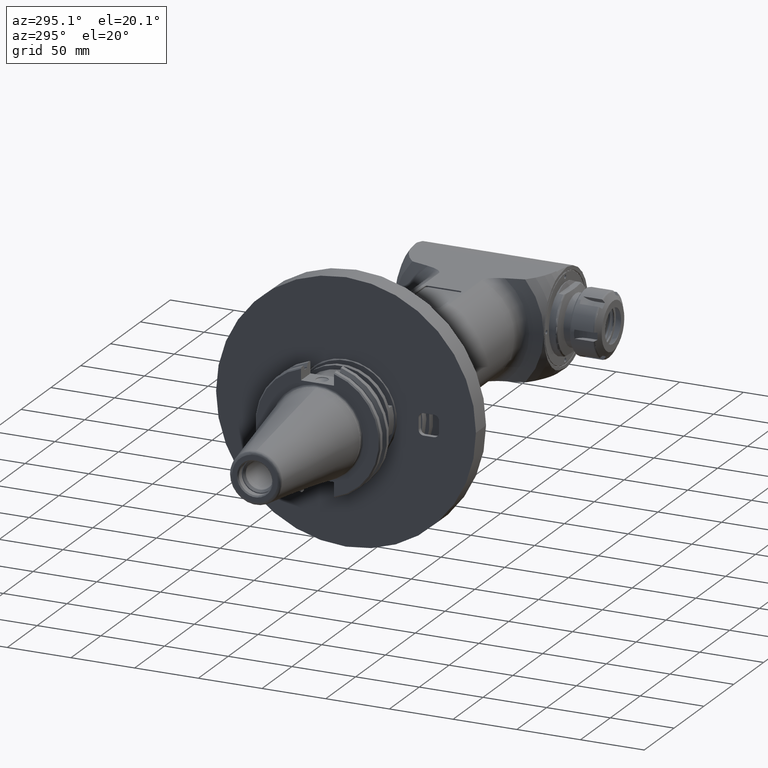
[diagram: clean part render]
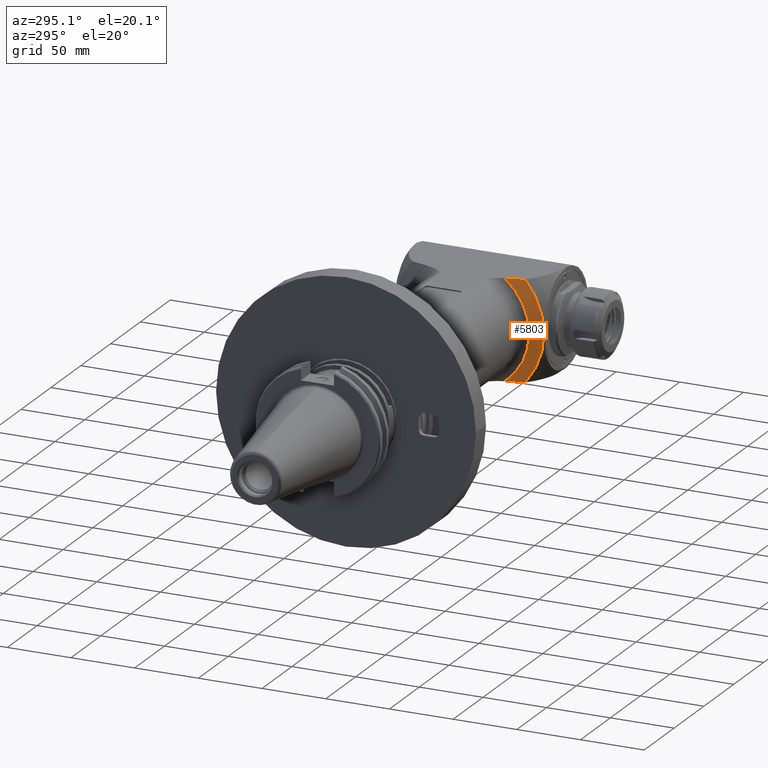
[diagram: same view with one face highlighted and labeled with its STEP entity id]
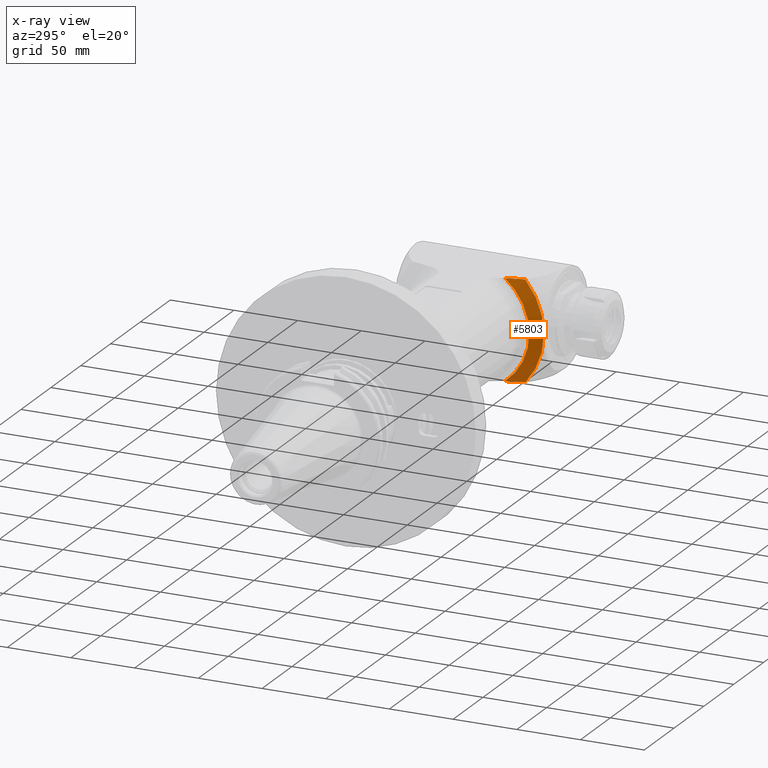
[diagram: x-ray of the same camera — body ghosted, the highlighted face saturated]
A machine part, auxiliary view. The second image highlights one B-rep face of the part: STEP entity #5803.
The next image is the same camera in x-ray: the body ghosted, the highlighted face saturated — about 0% of this face is hidden behind the body in this view.
In plain terms, the highlighted conical surface has half-angle 68 deg.
Its self-contained STEP definition (entity closure, byte-faithful):
#275=CONICAL_SURFACE('',#6319,54.18966373621,1.18682389135614);
#328=(
BOUNDED_CURVE()
B_SPLINE_CURVE(2,(#8885,#8886,#8887),.UNSPECIFIED.,.F.,.F.)
B_SPLINE_CURVE_WITH_KNOTS((3,3),(4.52334173128765,6.36262635387725),
 .UNSPECIFIED.)
CURVE()
GEOMETRIC_REPRESENTATION_ITEM()
RATIONAL_B_SPLINE_CURVE((1.65245227205287,1.75473892938806,1.83233259822002))
REPRESENTATION_ITEM('')
);
#348=(
BOUNDED_CURVE()
B_SPLINE_CURVE(2,(#9185,#9186,#9187),.UNSPECIFIED.,.F.,.F.)
B_SPLINE_CURVE_WITH_KNOTS((3,3),(18.5610515989433,20.4507038026227),
 .UNSPECIFIED.)
CURVE()
GEOMETRIC_REPRESENTATION_ITEM()
RATIONAL_B_SPLINE_CURVE((1.88075550848633,1.80111127784106,1.69612149902103))
REPRESENTATION_ITEM('')
);
#536=FACE_OUTER_BOUND('',#913,.T.);
#913=EDGE_LOOP('',(#4158,#4159,#4160,#4161,#4162));
#1385=CIRCLE('',#6318,59.);
#1386=CIRCLE('',#6320,49.37932747242);
#1387=CIRCLE('',#6321,59.);
#2383=VERTEX_POINT('',#8867);
#2384=VERTEX_POINT('',#8884);
#2431=VERTEX_POINT('',#9180);
#2432=VERTEX_POINT('',#9184);
#2497=VERTEX_POINT('',#9500);
#2969=EDGE_CURVE('',#2384,#2383,#328,.T.);
#3024=EDGE_CURVE('',#2432,#2431,#348,.T.);
#3134=EDGE_CURVE('',#2497,#2431,#1385,.T.);
#3135=EDGE_CURVE('',#2383,#2432,#1386,.T.);
#3136=EDGE_CURVE('',#2384,#2497,#1387,.T.);
#4158=ORIENTED_EDGE('',*,*,#3135,.T.);
#4159=ORIENTED_EDGE('',*,*,#3024,.T.);
#4160=ORIENTED_EDGE('',*,*,#3134,.F.);
#4161=ORIENTED_EDGE('',*,*,#3136,.F.);
#4162=ORIENTED_EDGE('',*,*,#2969,.T.);
#5803=ADVANCED_FACE('',(#536),#275,.T.);
#6318=AXIS2_PLACEMENT_3D('',#9519,#7249,#7250);
#6319=AXIS2_PLACEMENT_3D('',#9520,#7251,#7252);
#6320=AXIS2_PLACEMENT_3D('',#9521,#7253,#7254);
#6321=AXIS2_PLACEMENT_3D('',#9522,#7255,#7256);
#7249=DIRECTION('center_axis',(1.,0.,0.));
#7250=DIRECTION('ref_axis',(0.,-1.,0.));
#7251=DIRECTION('center_axis',(1.,0.,0.));
#7252=DIRECTION('ref_axis',(0.,-1.,3.06877890474385E-12));
#7253=DIRECTION('center_axis',(1.,0.,0.));
#7254=DIRECTION('ref_axis',(0.,-0.613359057199374,0.789804195324066));
#7255=DIRECTION('center_axis',(1.,0.,0.));
#7256=DIRECTION('ref_axis',(0.,-0.750372100090502,0.661015666535802));
#8867=CARTESIAN_POINT('',(-39.72057128504,-30.28725774361,39.));
#8884=CARTESIAN_POINT('',(-35.8335672407487,-44.2718872982791,38.999999986593));
#8885=CARTESIAN_POINT('Ctrl Pts',(-35.8335672554206,-44.2718873027272,39.));
#8886=CARTESIAN_POINT('Ctrl Pts',(-38.1416007534262,-36.6588750840377,39.));
#8887=CARTESIAN_POINT('Ctrl Pts',(-39.7205712851341,-30.2872577432286,39.));
#9180=CARTESIAN_POINT('',(-35.8335672407487,-44.2718872982792,-38.999999986593));
#9184=CARTESIAN_POINT('',(-39.72057128503,-30.28725774362,-39.00000000001));
#9185=CARTESIAN_POINT('Ctrl Pts',(-39.7205712848601,-30.2872577443346,-39.));
#9186=CARTESIAN_POINT('Ctrl Pts',(-38.1416007532292,-36.6588750846875,-39.));
#9187=CARTESIAN_POINT('Ctrl Pts',(-35.8335672554206,-44.2718873027273,-39.));
#9500=CARTESIAN_POINT('',(-35.83356727372,-59.,1.362454033559E-13));
#9519=CARTESIAN_POINT('Origin',(-35.83356727372,0.,0.));
#9520=CARTESIAN_POINT('Origin',(-37.77706927938,0.,0.));
#9521=CARTESIAN_POINT('Origin',(-39.72057128503,0.,0.));
#9522=CARTESIAN_POINT('Origin',(-35.83356727372,0.,0.));